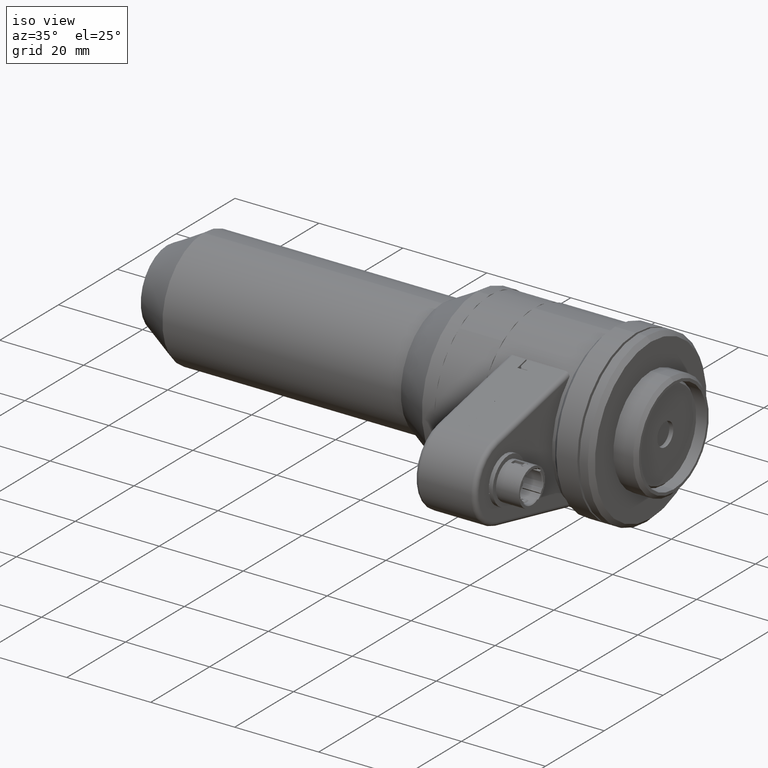
[diagram: clean part render]
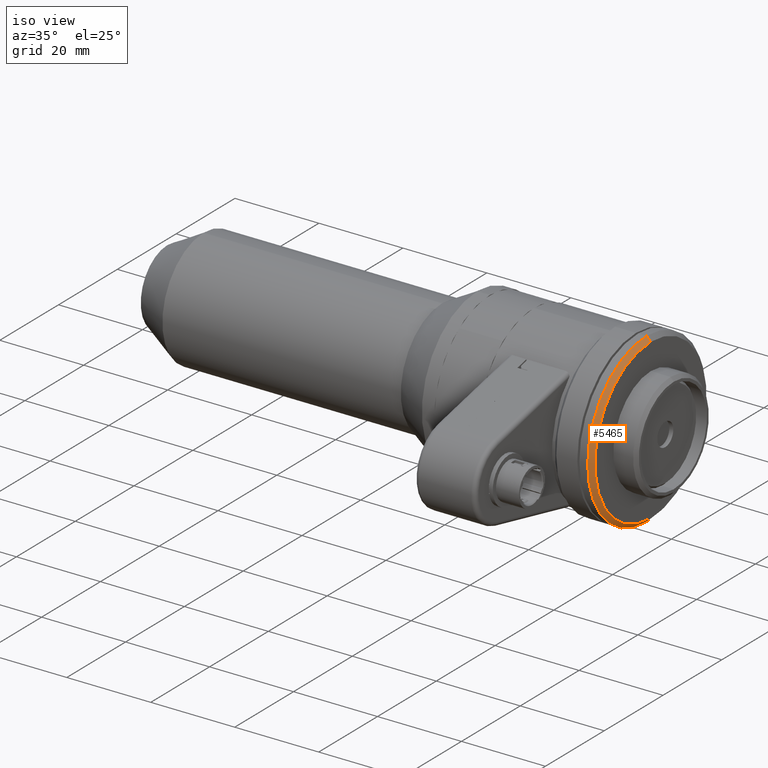
[diagram: same view with one face highlighted and labeled with its STEP entity id]
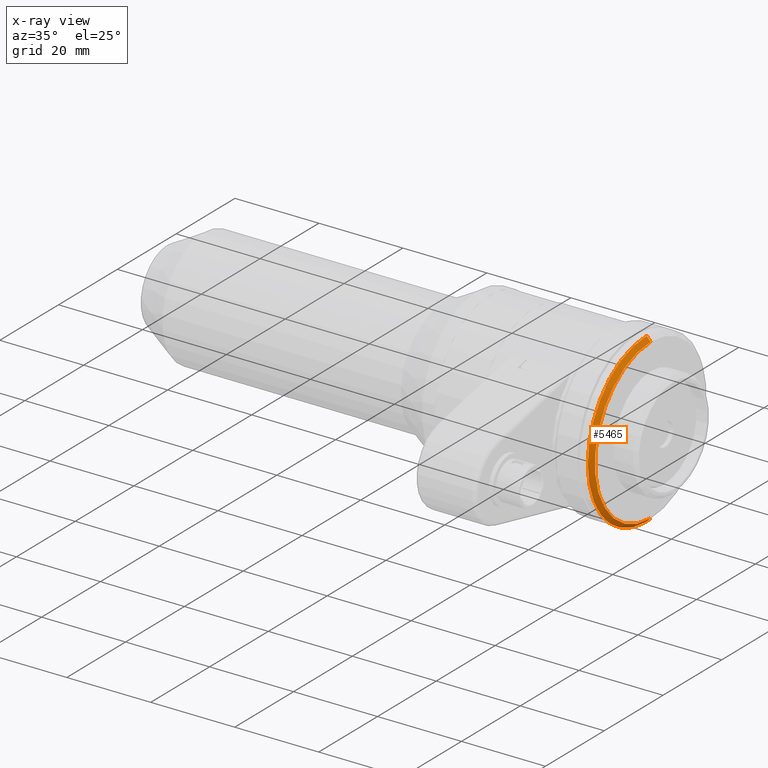
[diagram: x-ray of the same camera — body ghosted, the highlighted face saturated]
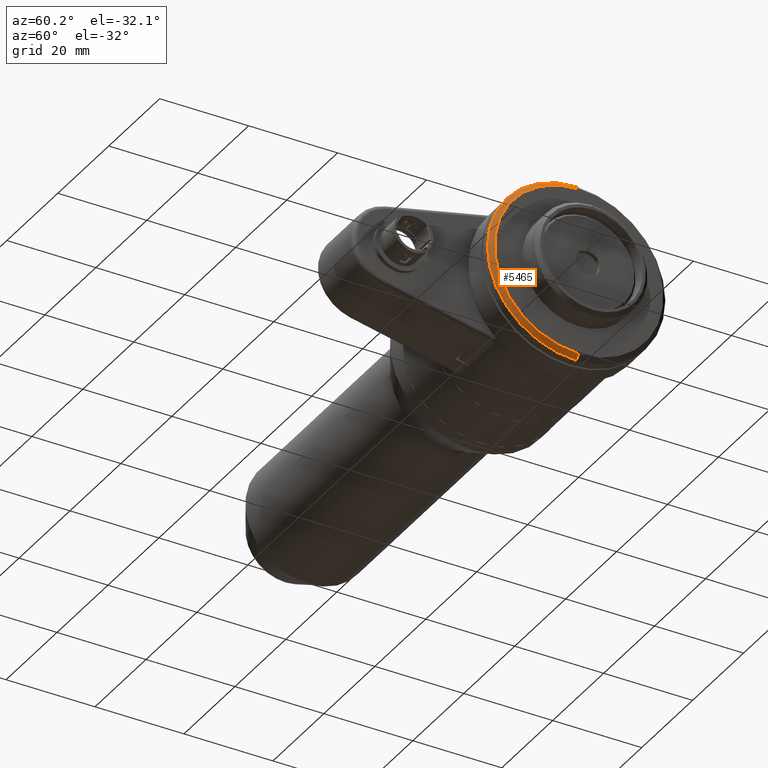
[diagram: same view with one face highlighted and labeled with its STEP entity id]
A machine part, iso view. The second image highlights one B-rep face of the part: STEP entity #5465.
The next image is the same camera in x-ray: the body ghosted, the highlighted face saturated — about 0% of this face is hidden behind the body in this view.
A second angle (auxiliary view) of the same face is appended — the face is thin or edge-on in the first view.
In plain terms, the highlighted conical surface has half-angle 45 deg.
Its self-contained STEP definition (entity closure, byte-faithful):
#3 = CARTESIAN_POINT ( 'NONE',  ( 115.0667410000000217, -2.535374617662735275E-15, 18.99999999999998934 ) ) ;
#98 = CARTESIAN_POINT ( 'NONE',  ( 114.0667410000000075, -1.350372460482804510E-16, -20.00000000000000355 ) ) ;
#307 = CARTESIAN_POINT ( 'NONE',  ( 114.0667410000000075, -1.350372460482805003E-16, -1.945011996651599385E-16 ) ) ;
#1002 = DIRECTION ( 'NONE',  ( -1.000000000000000000, 2.455222655423284177E-17, 7.169842619957531957E-17 ) ) ;
#1187 = VERTEX_POINT ( 'NONE', #98 ) ;
#1465 = CARTESIAN_POINT ( 'NONE',  ( 115.0667410000000217, -2.486418390982483437E-15, 18.99999999999998934 ) ) ;
#1630 = CARTESIAN_POINT ( 'NONE',  ( 115.0667410000000217, -1.595894726025136749E-16, -18.99999999999998934 ) ) ;
#1822 = CARTESIAN_POINT ( 'NONE',  ( 115.0667410000000217, -1.473133593253970999E-16, -18.99999999999998934 ) ) ;
#1876 = VERTEX_POINT ( 'NONE', #1822 ) ;
#2026 = VERTEX_POINT ( 'NONE', #3 ) ;
#2207 = DIRECTION ( 'NONE',  ( -1.000000000000000000, 2.455222655423284177E-17, 7.169842619957531957E-17 ) ) ;
#2329 = CONICAL_SURFACE ( 'NONE', #6698, 18.99999999999998934, 0.7853981633974482790 ) ;
#2887 = AXIS2_PLACEMENT_3D ( 'NONE', #6598, #8124, #6206 ) ;
#3027 = DIRECTION ( 'NONE',  ( 0.0000000000000000000, -5.068236695755886921E-33, -1.000000000000000000 ) ) ;
#3531 = CARTESIAN_POINT ( 'NONE',  ( 115.0667410000000217, -1.595894726025136009E-16, -2.661996258647116908E-16 ) ) ;
#3595 = EDGE_CURVE ( 'NONE', #1876, #1187, #4910, .T. ) ;
#3825 = EDGE_CURVE ( 'NONE', #2026, #1876, #7517, .T. ) ;
#4058 = CARTESIAN_POINT ( 'NONE',  ( 114.0667410000000075, -2.584330844342987506E-15, 20.00000000000000355 ) ) ;
#4157 = ORIENTED_EDGE ( 'NONE', *, *, #3595, .F. ) ;
#4499 = AXIS2_PLACEMENT_3D ( 'NONE', #307, #2207, #4752 ) ;
#4627 = LINE ( 'NONE', #1465, #7988 ) ;
#4747 = EDGE_CURVE ( 'NONE', #2026, #7200, #4627, .T. ) ;
#4752 = DIRECTION ( 'NONE',  ( 0.0000000000000000000, 4.814824860968089633E-33, 1.000000000000000000 ) ) ;
#4910 = LINE ( 'NONE', #1630, #7560 ) ;
#5465 = ADVANCED_FACE ( 'NONE', ( #6717 ), #2329, .T. ) ;
#5554 = CIRCLE ( 'NONE', #4499, 20.00000000000000000 ) ;
#6101 = EDGE_CURVE ( 'NONE', #1187, #7200, #5554, .T. ) ;
#6206 = DIRECTION ( 'NONE',  ( 0.0000000000000000000, 5.068236695755886921E-33, 1.000000000000000000 ) ) ;
#6598 = CARTESIAN_POINT ( 'NONE',  ( 115.0667410000000217, -1.595894726025136009E-16, -2.661996258647116908E-16 ) ) ;
#6698 = AXIS2_PLACEMENT_3D ( 'NONE', #3531, #1002, #3027 ) ;
#6717 = FACE_OUTER_BOUND ( 'NONE', #7699, .T. ) ;
#6905 = ORIENTED_EDGE ( 'NONE', *, *, #6101, .F. ) ;
#7200 = VERTEX_POINT ( 'NONE', #4058 ) ;
#7437 = DIRECTION ( 'NONE',  ( -0.7071067811865474617, 1.736104588972646005E-17, -0.7071067811865474617 ) ) ;
#7517 = CIRCLE ( 'NONE', #2887, 18.99999999999998934 ) ;
#7560 = VECTOR ( 'NONE', #7437, 1000.000000000000114 ) ;
#7692 = DIRECTION ( 'NONE',  ( -0.7071067811865474617, -6.923455973382285929E-17, 0.7071067811865474617 ) ) ;
#7699 = EDGE_LOOP ( 'NONE', ( #7923, #7914, #6905, #4157 ) ) ;
#7914 = ORIENTED_EDGE ( 'NONE', *, *, #4747, .T. ) ;
#7923 = ORIENTED_EDGE ( 'NONE', *, *, #3825, .F. ) ;
#7988 = VECTOR ( 'NONE', #7692, 1000.000000000000114 ) ;
#8124 = DIRECTION ( 'NONE',  ( 1.000000000000000000, -2.455222655423284177E-17, -7.169842619957531957E-17 ) ) ;